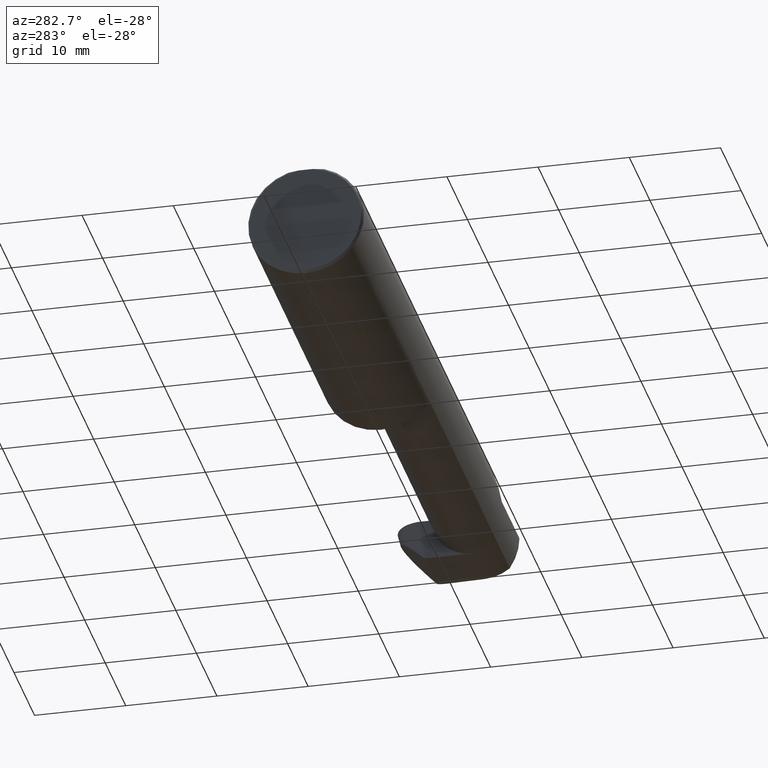
[diagram: clean part render]
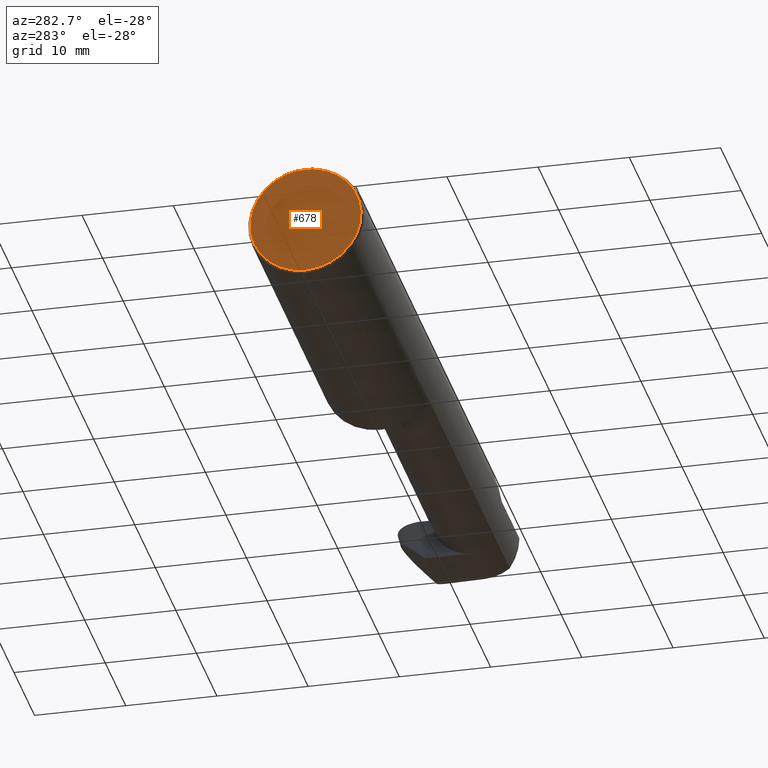
[diagram: same view with one face highlighted and labeled with its STEP entity id]
A machine part, auxiliary view. The second image highlights one B-rep face of the part: STEP entity #678.
In plain terms, the highlighted planar face has unit normal (1, 0, 0).
Its self-contained STEP definition (entity closure, byte-faithful):
#44 = FACE_OUTER_BOUND ( 'NONE', #569, .T. ) ;
#57 = AXIS2_PLACEMENT_3D ( 'NONE', #443, #161, #332 ) ;
#161 = DIRECTION ( 'NONE',  ( -1.000000000000000000, -0.000000000000000000, -0.000000000000000000 ) ) ;
#182 = CARTESIAN_POINT ( 'NONE',  ( 0.000000000000000000, 0.000000000000000000, 0.000000000000000000 ) ) ;
#184 = CARTESIAN_POINT ( 'NONE',  ( 0.000000000000000000, 0.000000000000000000, -0.2398500000000001742 ) ) ;
#186 = DIRECTION ( 'NONE',  ( 1.000000000000000000, 0.000000000000000000, 0.000000000000000000 ) ) ;
#191 = EDGE_CURVE ( 'NONE', #239, #204, #453, .T. ) ;
#204 = VERTEX_POINT ( 'NONE', #394 ) ;
#221 = CARTESIAN_POINT ( 'NONE',  ( 0.000000000000000000, -0.03090954545120560767, 0.2378499999999998671 ) ) ;
#224 = DIRECTION ( 'NONE',  ( -0.000000000000000000, 1.000000000000000000, -0.000000000000000000 ) ) ;
#238 = EDGE_CURVE ( 'NONE', #204, #300, #716, .T. ) ;
#239 = VERTEX_POINT ( 'NONE', #221 ) ;
#300 = VERTEX_POINT ( 'NONE', #184 ) ;
#327 = CARTESIAN_POINT ( 'NONE',  ( 0.000000000000000000, 0.000000000000000000, 0.000000000000000000 ) ) ;
#332 = DIRECTION ( 'NONE',  ( 0.000000000000000000, 0.000000000000000000, -1.000000000000000000 ) ) ;
#340 = DIRECTION ( 'NONE',  ( -1.000000000000000000, -0.000000000000000000, -0.000000000000000000 ) ) ;
#379 = CIRCLE ( 'NONE', #57, 0.2398500000000001742 ) ;
#394 = CARTESIAN_POINT ( 'NONE',  ( 0.000000000000000000, 0.03090954545120574992, 0.2378499999999998671 ) ) ;
#408 = DIRECTION ( 'NONE',  ( 0.000000000000000000, 0.000000000000000000, -1.000000000000000000 ) ) ;
#441 = ORIENTED_EDGE ( 'NONE', *, *, #191, .T. ) ;
#443 = CARTESIAN_POINT ( 'NONE',  ( 0.000000000000000000, 0.000000000000000000, 0.000000000000000000 ) ) ;
#453 = LINE ( 'NONE', #558, #540 ) ;
#468 = AXIS2_PLACEMENT_3D ( 'NONE', #182, #186, #408 ) ;
#520 = EDGE_CURVE ( 'NONE', #300, #239, #379, .T. ) ;
#523 = PLANE ( 'NONE',  #468 ) ;
#540 = VECTOR ( 'NONE', #224, 39.37007874015748143 ) ;
#558 = CARTESIAN_POINT ( 'NONE',  ( 0.000000000000000000, 0.2498499999999998500, 0.2378499999999998671 ) ) ;
#559 = ORIENTED_EDGE ( 'NONE', *, *, #520, .T. ) ;
#569 = EDGE_LOOP ( 'NONE', ( #441, #735, #559 ) ) ;
#619 = AXIS2_PLACEMENT_3D ( 'NONE', #327, #340, #730 ) ;
#678 = ADVANCED_FACE ( 'NONE', ( #44 ), #523, .F. ) ;
#716 = CIRCLE ( 'NONE', #619, 0.2398500000000001742 ) ;
#730 = DIRECTION ( 'NONE',  ( 0.000000000000000000, 0.000000000000000000, -1.000000000000000000 ) ) ;
#735 = ORIENTED_EDGE ( 'NONE', *, *, #238, .T. ) ;